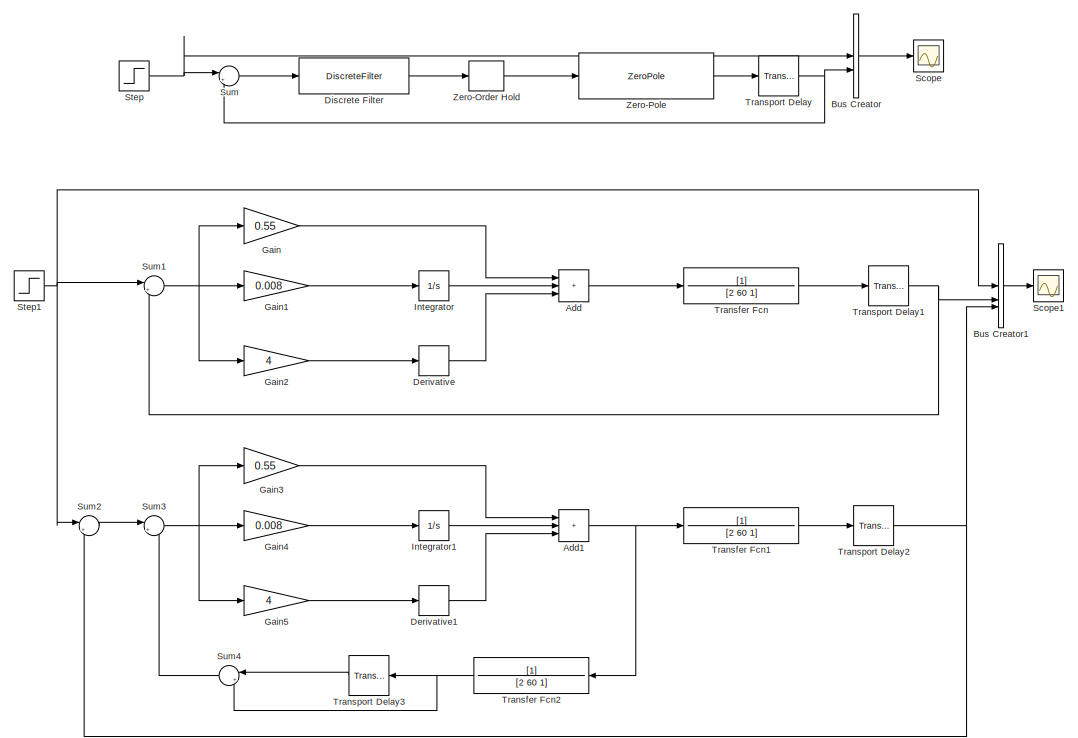
[diagram: root canvas - part 1/2, full width, top band]
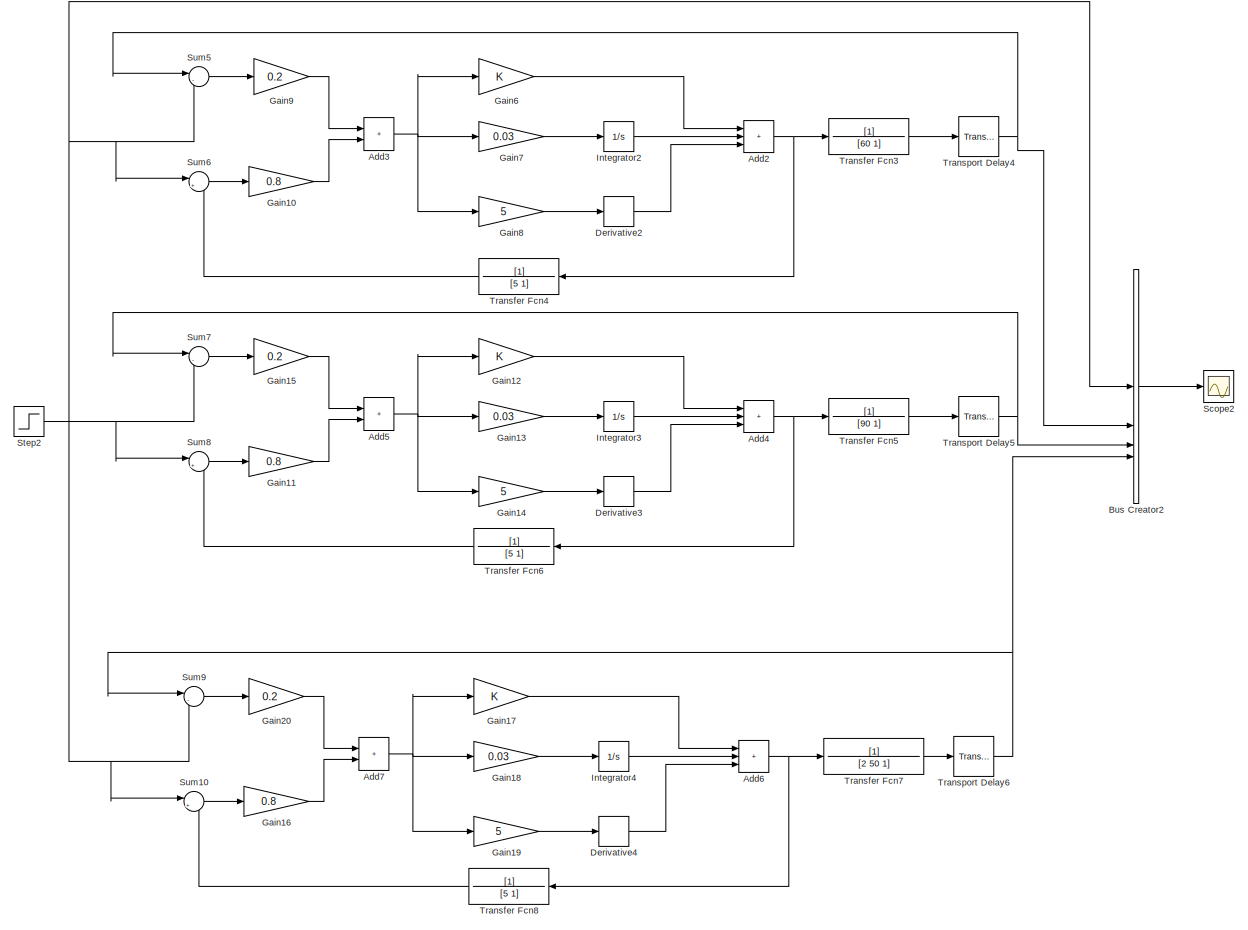
[diagram: root canvas - part 2/2, full width, bottom band]
MODEL slx_37801640a8ae
KIND model
CONFIG AbsTol = auto
CONFIG EnableMultiTasking = off
CONFIG FixedStep = auto
CONFIG MaxStep = auto
CONFIG MinStep = auto
CONFIG RelTol = 1e-3
CONFIG SampleTimeConstraint = Unconstrained
CONFIG SolverName = VariableStepAuto
CONFIG StartTime = 0.0
CONFIG StopTime = 300
BLOCK [Sum] Add
  Commented = on
  IconShape = rectangular
  Inputs = +++
BLOCK [Sum] Add1
  Commented = on
  IconShape = rectangular
  Inputs = +++
BLOCK [Sum] Add2
  IconShape = rectangular
  Inputs = +++
BLOCK [Sum] Add3
  IconShape = rectangular
BLOCK [Sum] Add4
  IconShape = rectangular
  Inputs = +++
BLOCK [Sum] Add5
  IconShape = rectangular
BLOCK [Sum] Add6
  IconShape = rectangular
  Inputs = +++
BLOCK [Sum] Add7
  IconShape = rectangular
BLOCK [BusCreator] Bus Creator
  Commented = on
  DisplayOption = bar
  InheritFromInputs = on
  Inputs = 2
BLOCK [BusCreator] Bus Creator1
  Commented = on
  DisplayOption = bar
  InheritFromInputs = on
  Inputs = 3
BLOCK [BusCreator] Bus Creator2
  DisplayOption = bar
  InheritFromInputs = on
  Inputs = 4
BLOCK [Derivative] Derivative
  Commented = on
BLOCK [Derivative] Derivative1
  Commented = on
BLOCK [Derivative] Derivative2
BLOCK [Derivative] Derivative3
BLOCK [Derivative] Derivative4
BLOCK [DiscreteFilter] Discrete Filter
  Commented = on
  Denominator = [1 -0.82 0 0 0 0 -0.18]
  InputPortMap = u0
  Numerator = [4.5 -4.41]
  SampleTime = 2
BLOCK [Gain] Gain
  Commented = on
  Gain = 0.55
BLOCK [Gain] Gain1
  Commented = on
  Gain = 0.008
BLOCK [Gain] Gain10
  Gain = 0.8
BLOCK [Gain] Gain11
  Gain = 0.8
BLOCK [Gain] Gain12
BLOCK [Gain] Gain13
  Gain = 0.03
BLOCK [Gain] Gain14
  Gain = 5
BLOCK [Gain] Gain15
  Gain = 0.2
BLOCK [Gain] Gain16
  Gain = 0.8
BLOCK [Gain] Gain17
BLOCK [Gain] Gain18
  Gain = 0.03
BLOCK [Gain] Gain19
  Gain = 5
BLOCK [Gain] Gain2
  Commented = on
  Gain = 4
BLOCK [Gain] Gain20
  Gain = 0.2
BLOCK [Gain] Gain3
  Commented = on
  Gain = 0.55
BLOCK [Gain] Gain4
  Commented = on
  Gain = 0.008
BLOCK [Gain] Gain5
  Commented = on
  Gain = 4
BLOCK [Gain] Gain6
BLOCK [Gain] Gain7
  Gain = 0.03
BLOCK [Gain] Gain8
  Gain = 5
BLOCK [Gain] Gain9
  Gain = 0.2
BLOCK [Integrator] Integrator
  Commented = on
BLOCK [Integrator] Integrator1
  Commented = on
BLOCK [Integrator] Integrator2
BLOCK [Integrator] Integrator3
BLOCK [Integrator] Integrator4
BLOCK [Scope] Scope
  Commented = on
  Floating = off
  NumInputPorts = 1
  ScopeSpecificationString = Simulink.scopes.TimeScopeBlockCfg('CurrentConfiguration', extmgr.ConfigurationSet(extmgr.Configuration('Core','General UI',true),extmgr.Configuration('Core','Source UI',true),extmgr.Configuration('Sources','WiredSimulink',true),extmgr.Configuration('Visuals','Time Domain',true,'SerializedDisplays',{struct('MinYLimReal','-0.1251','MaxYLimReal','1.12588','YLabelReal','','MinYLimMag','0.00000','MaxYL...<+1397ch>
BLOCK [Scope] Scope1
  Commented = on
  Floating = off
  NumInputPorts = 1
  ScopeSpecificationString = Simulink.scopes.TimeScopeBlockCfg('CurrentConfiguration', extmgr.ConfigurationSet(extmgr.Configuration('Core','General UI',true),extmgr.Configuration('Core','Source UI',true),extmgr.Configuration('Sources','WiredSimulink',true,'DataLoggingVariableName','ScopeData1'),extmgr.Configuration('Visuals','Time Domain',true,'SerializedDisplays',{struct('MinYLimReal','-0.125','MaxYLimReal','1.125','YLabelRe...<+1421ch>
BLOCK [Scope] Scope2
  Floating = off
  NumInputPorts = 1
  ScopeSpecificationString = Simulink.scopes.TimeScopeBlockCfg('CurrentConfiguration', extmgr.ConfigurationSet(extmgr.Configuration('Core','General UI',true),extmgr.Configuration('Core','Source UI',true),extmgr.Configuration('Sources','WiredSimulink',true,'DataLoggingVariableName','ScopeData2'),extmgr.Configuration('Visuals','Time Domain',true,'SerializedDisplays',{struct('MinYLimReal','-1.22609','MaxYLimReal','11.03483','YLa...<+1456ch>
BLOCK [Step] Step
  Commented = on
  SampleTime = 0
  Time = 0
BLOCK [Step] Step1
  Commented = on
  SampleTime = 2
  Time = 0
BLOCK [Step] Step2
  SampleTime = 2
  Time = 0
BLOCK [Sum] Sum
  Commented = on
  Inputs = |+-
BLOCK [Sum] Sum1
  Commented = on
  Inputs = |+-
BLOCK [Sum] Sum10
  Inputs = |+-
BLOCK [Sum] Sum2
  Commented = on
  Inputs = |+-
BLOCK [Sum] Sum3
  Commented = on
  Inputs = |+-
BLOCK [Sum] Sum4
  Commented = on
  Inputs = |+-
  NameLocation = top
BLOCK [Sum] Sum5
  Inputs = |-+
BLOCK [Sum] Sum6
  Inputs = |+-
BLOCK [Sum] Sum7
  Inputs = |-+
BLOCK [Sum] Sum8
  Inputs = |+-
BLOCK [Sum] Sum9
  Inputs = |-+
BLOCK [TransferFcn] Transfer Fcn
  Commented = on
  Denominator = [2 60 1]
BLOCK [TransferFcn] Transfer Fcn1
  Commented = on
  Denominator = [2 60 1]
BLOCK [TransferFcn] Transfer Fcn2
  Commented = on
  Denominator = [2 60 1]
  NameLocation = top
BLOCK [TransferFcn] Transfer Fcn3
  Denominator = [60 1]
BLOCK [TransferFcn] Transfer Fcn4
  Denominator = [5 1]
  NameLocation = top
BLOCK [TransferFcn] Transfer Fcn5
  Denominator = [90 1]
BLOCK [TransferFcn] Transfer Fcn6
  Denominator = [5 1]
  NameLocation = top
BLOCK [TransferFcn] Transfer Fcn7
  Denominator = [2 50 1]
BLOCK [TransferFcn] Transfer Fcn8
  Denominator = [5 1]
  NameLocation = top
BLOCK [TransportDelay] Transport Delay
  Commented = on
  DelayTime = 10
BLOCK [TransportDelay] Transport Delay1
  Commented = on
  DelayTime = 30
BLOCK [TransportDelay] Transport Delay2
  Commented = on
  DelayTime = 30
BLOCK [TransportDelay] Transport Delay3
  Commented = on
  DelayTime = 30
  NameLocation = top
BLOCK [TransportDelay] Transport Delay4
  DelayTime = 30
BLOCK [TransportDelay] Transport Delay5
  DelayTime = 30
BLOCK [TransportDelay] Transport Delay6
  DelayTime = 30
BLOCK [ZeroOrderHold] Zero-Order Hold
  Commented = on
  SampleTime = -1
BLOCK [ZeroPole] Zero-Pole
  Commented = on
  Gain = [1/50]
  Poles = [-1/100]
  Zeros = []
NET Add1:1 -> Transfer Fcn1:1, Transfer Fcn2:1
NET Add2:1 -> Transfer Fcn3:1, Transfer Fcn4:1
NET Add3:1 -> Gain6:1, Gain7:1, Gain8:1
NET Add4:1 -> Transfer Fcn5:1, Transfer Fcn6:1
NET Add5:1 -> Gain12:1, Gain13:1, Gain14:1
NET Add6:1 -> Transfer Fcn7:1, Transfer Fcn8:1
NET Add7:1 -> Gain17:1, Gain18:1, Gain19:1
LINE Add:1 -> Transfer Fcn:1
LINE Bus Creator1:1 -> Scope1:1
LINE Bus Creator2:1 -> Scope2:1
LINE Bus Creator:1 -> Scope:1
LINE Derivative1:1 -> Add1:3
LINE Derivative2:1 -> Add2:3
LINE Derivative3:1 -> Add4:3
LINE Derivative4:1 -> Add6:3
LINE Derivative:1 -> Add:3
LINE Discrete Filter:1 -> Zero-Order Hold:1
LINE Gain10:1 -> Add3:2
LINE Gain11:1 -> Add5:2
LINE Gain12:1 -> Add4:1
LINE Gain13:1 -> Integrator3:1
LINE Gain14:1 -> Derivative3:1
LINE Gain15:1 -> Add5:1
LINE Gain16:1 -> Add7:2
LINE Gain17:1 -> Add6:1
LINE Gain18:1 -> Integrator4:1
LINE Gain19:1 -> Derivative4:1
LINE Gain1:1 -> Integrator:1
LINE Gain20:1 -> Add7:1
LINE Gain2:1 -> Derivative:1
LINE Gain3:1 -> Add1:1
LINE Gain4:1 -> Integrator1:1
LINE Gain5:1 -> Derivative1:1
LINE Gain6:1 -> Add2:1
LINE Gain7:1 -> Integrator2:1
LINE Gain8:1 -> Derivative2:1
LINE Gain9:1 -> Add3:1
LINE Gain:1 -> Add:1
LINE Integrator1:1 -> Add1:2
LINE Integrator2:1 -> Add2:2
LINE Integrator3:1 -> Add4:2
LINE Integrator4:1 -> Add6:2
LINE Integrator:1 -> Add:2
NET Step1:1 -> Bus Creator1:1, Sum1:1, Sum2:1
NET Step2:1 -> Bus Creator2:1, Sum10:1, Sum5:2, Sum6:1, Sum7:2, Sum8:1, Sum9:2
NET Step:1 -> Bus Creator:1, Sum:1
LINE Sum10:1 -> Gain16:1
NET Sum1:1 -> Gain1:1, Gain2:1, Gain:1
LINE Sum2:1 -> Sum3:1
NET Sum3:1 -> Gain3:1, Gain4:1, Gain5:1
LINE Sum4:1 -> Sum3:2
LINE Sum5:1 -> Gain9:1
LINE Sum6:1 -> Gain10:1
LINE Sum7:1 -> Gain15:1
LINE Sum8:1 -> Gain11:1
LINE Sum9:1 -> Gain20:1
LINE Sum:1 -> Discrete Filter:1
LINE Transfer Fcn1:1 -> Transport Delay2:1
NET Transfer Fcn2:1 -> Sum4:2, Transport Delay3:1
LINE Transfer Fcn3:1 -> Transport Delay4:1
LINE Transfer Fcn4:1 -> Sum6:2
LINE Transfer Fcn5:1 -> Transport Delay5:1
LINE Transfer Fcn6:1 -> Sum8:2
LINE Transfer Fcn7:1 -> Transport Delay6:1
LINE Transfer Fcn8:1 -> Sum10:2
LINE Transfer Fcn:1 -> Transport Delay1:1
NET Transport Delay1:1 -> Bus Creator1:2, Sum1:2
NET Transport Delay2:1 -> Bus Creator1:3, Sum2:2
LINE Transport Delay3:1 -> Sum4:1
NET Transport Delay4:1 -> Bus Creator2:2, Sum5:1
NET Transport Delay5:1 -> Bus Creator2:3, Sum7:1
NET Transport Delay6:1 -> Bus Creator2:4, Sum9:1
NET Transport Delay:1 -> Bus Creator:2, Sum:2
LINE Zero-Order Hold:1 -> Zero-Pole:1
LINE Zero-Pole:1 -> Transport Delay:1
note: NET lines group one-source signal fan-out (src -> all destinations, sorted); 1:1 wires keep LINE
